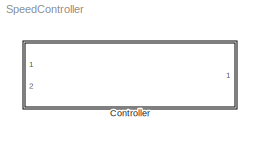
MODEL SpeedController
KIND model
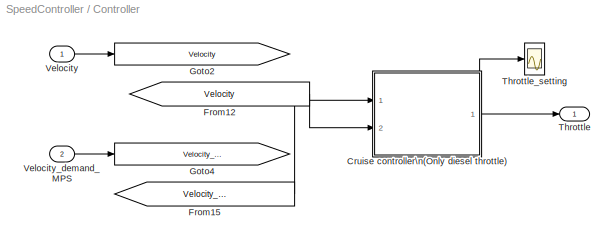
BLOCK [SubSystem] Controller
  FunctionWithSeparateData = off
  MaskHideContents = off
  MinAlgLoopOccurrences = off
  Opaque = off
  Ports = [2, 1]
  PropExecContextOutsideSubsystem = off
  RTWSystemCode = Auto
  RequestExecContextInheritance = off
  SID = 386
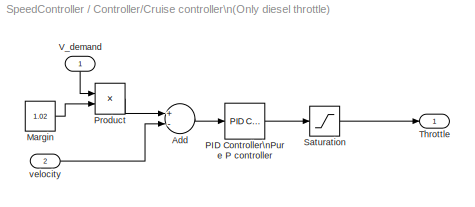
BLOCK [SubSystem] Controller/Cruise controller\n(Only diesel throttle)
  FunctionWithSeparateData = off
  MaskHideContents = off
  MinAlgLoopOccurrences = off
  Opaque = off
  Ports = [2, 1]
  PropExecContextOutsideSubsystem = off
  RTWSystemCode = Auto
  RequestExecContextInheritance = off
  SID = 395
BLOCK [Sum] Controller/Cruise controller\n(Only diesel throttle)/Add
  InputSameDT = off
  Inputs = +-
  OutDataTypeStr = Inherit: Inherit via internal rule
  Ports = [2, 1]
  SID = 398
  SaturateOnIntegerOverflow = off
BLOCK [Constant] Controller/Cruise controller\n(Only diesel throttle)/Margin
  SID = 399
  Value = 1.02
BLOCK [Reference] Controller/Cruise controller\n(Only diesel throttle)/PID Controller\nPure P controller  REF=simulink/Continuous/PID Controller
  AntiWindupMode = none
  Controller = PID
  D = 0
  DOutDataTypeStr = Inherit: Inherit via internal rule
  DOutMax = []
  DOutMin = []
  DParamDataTypeStr = Inherit: Inherit via internal rule
  DParamMax = []
  DParamMin = []
  DialogController = pidpack.PIDConfig.pidDDGCreate
  DialogControllerArgs = DataTag0
  ExternalReset = none
  FilterContinuousStateAttributes = ''
  FilterMethod = Forward Euler
  FilterOutDataTypeStr = Inherit: Inherit via internal rule
  FilterOutMax = []
  FilterOutMin = []
  FilterRTWStateStorageClass = Auto
  FilterStateMustResolveToSignalObject = off
  Form = Parallel
  FunctionWithSeparateData = off
  GeneratePreprocessorConditionals = off
  I = 0
  IOutDataTypeStr = Inherit: Inherit via internal rule
  IOutMax = []
  IOutMin = []
  IParamDataTypeStr = Inherit: Inherit via internal rule
  IParamMax = []
  IParamMin = []
  IgnoreLimit = off
  InitialConditionForFilter = 0
  InitialConditionForIntegrator = 0
  InitialConditionSource = internal
  IntegratorContinuousStateAttributes = ''
  IntegratorMethod = Forward Euler
  IntegratorOutDataTypeStr = Inherit: Inherit via internal rule
  IntegratorOutMax = []
  IntegratorOutMin = []
  IntegratorRTWStateStorageClass = Auto
  IntegratorStateMustResolveToSignalObject = off
  Kb = 1
  KbOutDataTypeStr = Inherit: Inherit via internal rule
  KbOutMax = []
  KbOutMin = []
  KbParamDataTypeStr = Inherit: Inherit via internal rule
  KbParamMax = []
  KbParamMin = []
  Kt = 1
  KtOutDataTypeStr = Inherit: Inherit via internal rule
  KtOutMax = []
  KtOutMin = []
  KtParamDataTypeStr = Inherit: Inherit via internal rule
  KtParamMax = []
  KtParamMin = []
  LimitOutput = off
  LinearizeAsGain = off
  LockScale = off
  LowerSaturationLimit = -inf
  N = 100
  NOutDataTypeStr = Inherit: Inherit via internal rule
  NOutMax = []
  NOutMin = []
  NParamDataTypeStr = Inherit: Inherit via internal rule
  NParamMax = []
  NParamMin = []
  P = 7
  POutDataTypeStr = Inherit: Inherit via internal rule
  POutMax = []
  POutMin = []
  PParamDataTypeStr = Inherit: Inherit via internal rule
  PParamMax = []
  PParamMin = []
  Ports = [1, 1]
  RTWMemSecDataConstants = Inherit from model
  RTWMemSecDataInternal = Inherit from model
  RTWMemSecDataParameters = Inherit from model
  RTWMemSecFuncExecute = Inherit from model
  RTWMemSecFuncInitTerm = Inherit from model
  RndMeth = Floor
  SID = 400
  SampleTime = 1
  SaturateOnIntegerOverflow = off
  SaturationOutDataTypeStr = Inherit: Same as input
  SaturationOutMax = []
  SaturationOutMin = []
  ShowPortLabels = FromPortIcon
  SourceBlock = simulink/Continuous/PID Controller
  SourceType = PID 1dof
  SumAccumDataTypeStr = Inherit: Inherit via internal rule
  SumDAccumDataTypeStr = Inherit: Inherit via internal rule
  SumDOutDataTypeStr = Inherit: Inherit via internal rule
  SumDOutMax = []
  SumDOutMin = []
  SumI1AccumDataTypeStr = Inherit: Inherit via internal rule
  SumI1OutDataTypeStr = Inherit: Inherit via internal rule
  SumI1OutMax = []
  SumI1OutMin = []
  SumI2AccumDataTypeStr = Inherit: Inherit via internal rule
  SumI2OutDataTypeStr = Inherit: Inherit via internal rule
  SumI2OutMax = []
  SumI2OutMin = []
  SumI3AccumDataTypeStr = Inherit: Inherit via internal rule
  SumI3OutDataTypeStr = Inherit: Inherit via internal rule
  SumI3OutMax = []
  SumI3OutMin = []
  SumOutDataTypeStr = Inherit: Inherit via internal rule
  SumOutMax = []
  SumOutMin = []
  SystemSampleTime = -1
  TimeDomain = Continuous-time
  TrackingMode = off
  UpperSaturationLimit = inf
  ZeroCross = on
BLOCK [Product] Controller/Cruise controller\n(Only diesel throttle)/Product
  InputSameDT = off
  OutDataTypeStr = Inherit: Inherit via internal rule
  Ports = [2, 1]
  SID = 401
  SaturateOnIntegerOverflow = off
BLOCK [Saturate] Controller/Cruise controller\n(Only diesel throttle)/Saturation
  InputPortMap = u0
  LowerLimit = 0
  Ports = [1, 1]
  SID = 402
  UpperLimit = 1
BLOCK [Outport] Controller/Cruise controller\n(Only diesel throttle)/Throttle
  IconDisplay = Port number
  SID = 403
BLOCK [Inport] Controller/Cruise controller\n(Only diesel throttle)/V_demand
  IconDisplay = Port number
  SID = 396
BLOCK [Inport] Controller/Cruise controller\n(Only diesel throttle)/velocity
  IconDisplay = Port number
  Port = 2
  SID = 397
BLOCK [From] Controller/From12
  GotoTag = Velocity
  SID = 409
BLOCK [From] Controller/From15
  GotoTag = Velocity_Demand_MPS
  SID = 410
BLOCK [Goto] Controller/Goto2
  GotoTag = Velocity
  SID = 417
  TagVisibility = local
BLOCK [Goto] Controller/Goto4
  GotoTag = Velocity_Demand_MPS
  SID = 419
  TagVisibility = local
BLOCK [Outport] Controller/Throttle
  IconDisplay = Port number
  SID = 431
BLOCK [Scope] Controller/Throttle_setting
  DataFormat = StructureWithTime
  Floating = off
  LimitDataPoints = off
  NumInputPorts = 1
  Ports = [1]
  SID = 428
  SampleTime = 0
  SaveName = ScopeData4
  TimeRange = 500
  YMax = 1
  YMin = 0
BLOCK [Inport] Controller/Velocity
  IconDisplay = Port number
  SID = 389
BLOCK [Inport] Controller/Velocity_demand_MPS
  IconDisplay = Port number
  Port = 2
  SID = 390
LINE Controller/Cruise controller\n(Only diesel throttle)/Add:1 -> Controller/Cruise controller\n(Only diesel throttle)/PID Controller\nPure P controller:1
LINE Controller/Cruise controller\n(Only diesel throttle)/Margin:1 -> Controller/Cruise controller\n(Only diesel throttle)/Product:2
LINE Controller/Cruise controller\n(Only diesel throttle)/PID Controller\nPure P controller:1 -> Controller/Cruise controller\n(Only diesel throttle)/Saturation:1
LINE Controller/Cruise controller\n(Only diesel throttle)/Product:1 -> Controller/Cruise controller\n(Only diesel throttle)/Add:1
LINE Controller/Cruise controller\n(Only diesel throttle)/Saturation:1 -> Controller/Cruise controller\n(Only diesel throttle)/Throttle:1
LINE Controller/Cruise controller\n(Only diesel throttle)/V_demand:1 -> Controller/Cruise controller\n(Only diesel throttle)/Product:1
LINE Controller/Cruise controller\n(Only diesel throttle)/velocity:1 -> Controller/Cruise controller\n(Only diesel throttle)/Add:2
NET Controller/Cruise controller\n(Only diesel throttle):1 -> Controller/Throttle:1, Controller/Throttle_setting:1
LINE Controller/From12:1 -> Controller/Cruise controller\n(Only diesel throttle):2
LINE Controller/From15:1 -> Controller/Cruise controller\n(Only diesel throttle):1
LINE Controller/Velocity:1 -> Controller/Goto2:1
LINE Controller/Velocity_demand_MPS:1 -> Controller/Goto4:1
note: NET lines group one-source signal fan-out (src -> all destinations, sorted); 1:1 wires keep LINE
